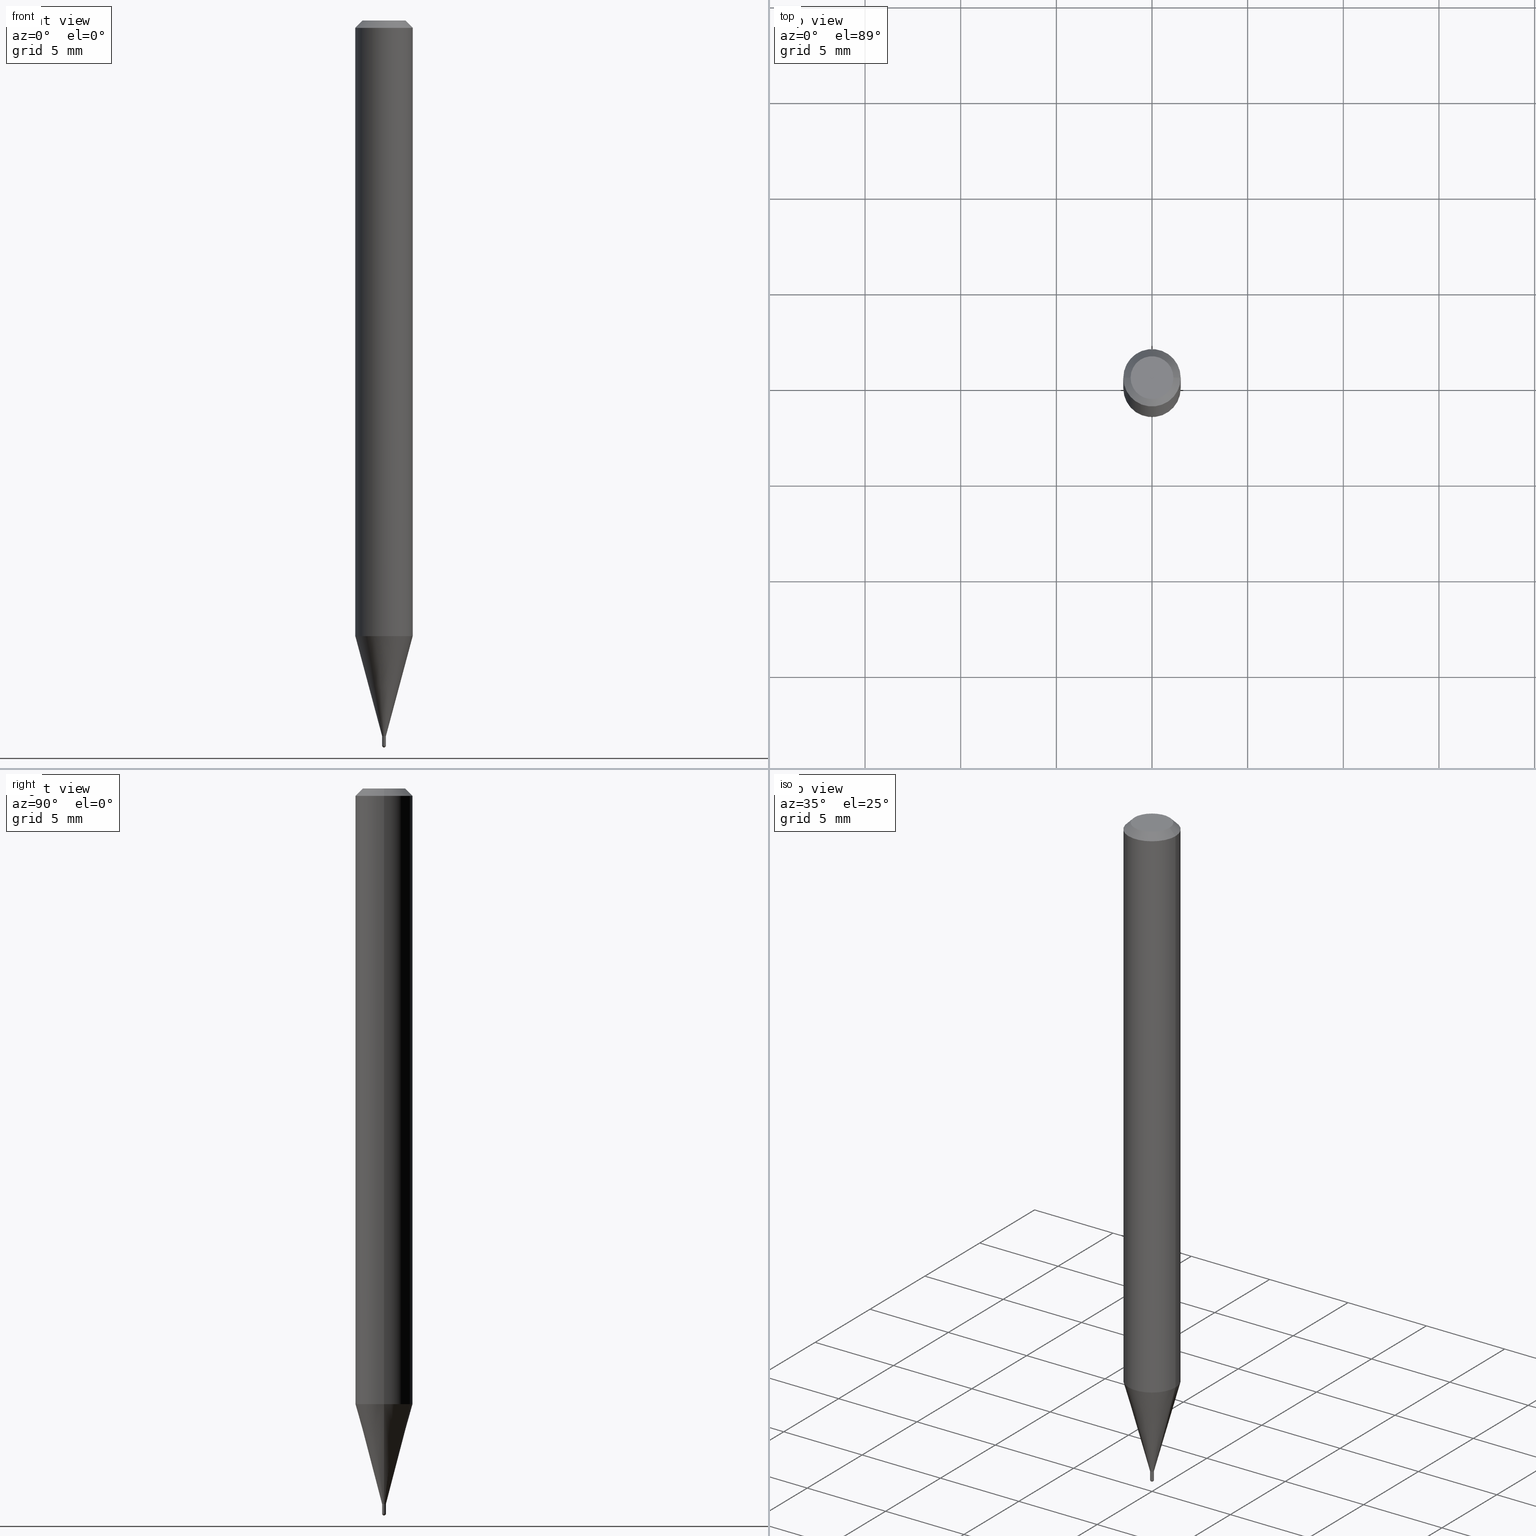
[diagram: canonical four-view strip — front | top / right | iso, engineering-drawing reading convention]
A machine part, canonical four-view strip (front | top / right | iso — engineering-drawing reading convention). The complete STEP part file that produces these views, byte-faithful:
ISO-10303-21;
HEADER;
FILE_DESCRIPTION (( 'STEP AP203' ),
    '1' );
FILE_NAME ('05007.STEP',
    '2024-03-08T20:41:01',
    ( '' ),
    ( '' ),
    'SwSTEP 2.0',
    'SolidWorks 2023',
    '' );
FILE_SCHEMA (( 'CONFIG_CONTROL_DESIGN' ));
ENDSEC;

DATA;
#1 = LINE ( 'NONE', #335, #199 ) ;
#2 = EDGE_CURVE ( 'NONE', #381, #50, #173, .T. ) ;
#3 = VECTOR ( 'NONE', #498, 39.37007874015748143 ) ;
#4 = MANIFOLD_SOLID_BREP ( 'Body-Move/Copy2[2]', #373 ) ;
#5 = LINE ( 'NONE', #486, #93 ) ;
#6 = DIRECTION ( 'NONE',  ( -2.445468806185136877E-29, 3.491481338843145188E-15, 1.000000000000000000 ) ) ;
#7 = EDGE_CURVE ( 'NONE', #50, #308, #119, .T. ) ;
#8 = DIRECTION ( 'NONE',  ( 1.000000000000000000, -7.105427357601001070E-15, 4.926315508542082329E-29 ) ) ;
#9 = VECTOR ( 'NONE', #35, 39.37007874015748143 ) ;
#10 = AXIS2_PLACEMENT_3D ( 'NONE', #37, #287, #397 ) ;
#11 = ORIENTED_EDGE ( 'NONE', *, *, #240, .T. ) ;
#12 = ORIENTED_EDGE ( 'NONE', *, *, #85, .T. ) ;
#13 = DIRECTION ( 'NONE',  ( 1.000000000000000000, -6.982962677686265922E-15, 4.888540261209747396E-29 ) ) ;
#14 =( LENGTH_UNIT ( ) NAMED_UNIT ( * ) SI_UNIT ( $, .METRE. ) );
#15 = CARTESIAN_POINT ( 'NONE',  ( 3.648668488464925560E-29, -5.210297615240462075E-15, -1.492149999999999865 ) ) ;
#16 = CC_DESIGN_PERSON_AND_ORGANIZATION_ASSIGNMENT ( #178, #221, ( #152 ) ) ;
#17 = DIRECTION ( 'NONE',  ( -0.7071067811865656694, 7.493145998870420424E-15, 0.7071067811865294761 ) ) ;
#18 = AXIS2_PLACEMENT_3D ( 'NONE', #15, #144, #106 ) ;
#19 = CC_DESIGN_SECURITY_CLASSIFICATION ( #121, ( #414 ) ) ;
#20 = DESIGN_CONTEXT ( 'detailed design', #429, 'design' ) ;
#21 = DIRECTION ( 'NONE',  ( -1.000000000000000000, 6.982962677686265922E-15, -4.876176775795935793E-29 ) ) ;
#22 = DIRECTION ( 'NONE',  ( 1.000000000000000000, -6.982962677686379518E-15, 0.000000000000000000 ) ) ;
#23 = DIRECTION ( 'NONE',  ( 1.000000000000000000, -6.982962677686266711E-15, 0.000000000000000000 ) ) ;
#24 = EDGE_CURVE ( 'NONE', #36, #280, #353, .T. ) ;
#25 = CARTESIAN_POINT ( 'NONE',  ( 3.599730082704520905E-29, -5.139460530777110821E-15, -1.471999999999999975 ) ) ;
#26 = ORIENTED_EDGE ( 'NONE', *, *, #410, .T. ) ;
#27 = AXIS2_PLACEMENT_3D ( 'NONE', #206, #370, #463 ) ;
#28 = AXIS2_PLACEMENT_3D ( 'NONE', #432, #342, #489 ) ;
#29 = FACE_OUTER_BOUND ( 'NONE', #269, .T. ) ;
#30 = APPROVAL ( #235, 'UNSPECIFIED' ) ;
#31 = EDGE_LOOP ( 'NONE', ( #150, #431 ) ) ;
#32 = ORIENTED_EDGE ( 'NONE', *, *, #85, .F. ) ;
#33 = UNCERTAINTY_MEASURE_WITH_UNIT (LENGTH_MEASURE( 1.000000000000000082E-05 ), #58, 'distance_accuracy_value', 'NONE');
#34 = CLOSED_SHELL ( 'NONE', ( #71, #83, #382, #315, #328 ) ) ;
#35 = DIRECTION ( 'NONE',  ( -0.7071067811865475727, 2.468850131082257455E-15, -0.7071067811865474617 ) ) ;
#36 = VERTEX_POINT ( 'NONE', #456 ) ;
#37 = CARTESIAN_POINT ( 'NONE',  ( 1.968655146103496235E-45, -2.810717800960375713E-31, -8.050215734195126909E-17 ) ) ;
#38 = EDGE_CURVE ( 'NONE', #101, #105, #337, .T. ) ;
#39 =( GEOMETRIC_REPRESENTATION_CONTEXT ( 3 ) GLOBAL_UNCERTAINTY_ASSIGNED_CONTEXT ( ( #33 ) ) GLOBAL_UNIT_ASSIGNED_CONTEXT ( ( #58, #326, #406 ) ) REPRESENTATION_CONTEXT ( 'NONE', 'WORKASPACE' ) );
#40 = DIRECTION ( 'NONE',  ( -2.445468806185136597E-29, 3.491481338843145583E-15, 1.000000000000000000 ) ) ;
#41 = EDGE_CURVE ( 'NONE', #36, #270, #281, .T. ) ;
#42 = ORIENTED_EDGE ( 'NONE', *, *, #402, .F. ) ;
#43 = COORDINATED_UNIVERSAL_TIME_OFFSET ( 5, 0, .BEHIND. ) ;
#44 = CARTESIAN_POINT ( 'NONE',  ( 3.600952817107613145E-29, -5.141206271446531536E-15, -1.472499999999999920 ) ) ;
#45 = ORIENTED_EDGE ( 'NONE', *, *, #94, .T. ) ;
#46 = CONICAL_SURFACE ( 'NONE', #238, 0.05904999999999999832, 0.7853981633974483900 ) ;
#47 = CONICAL_SURFACE ( 'NONE', #186, 0.003450000000000000809, 0.7853981633974739252 ) ;
#48 = CALENDAR_DATE ( 2024, 8, 3 ) ;
#49 = APPROVAL_PERSON_ORGANIZATION ( #438, #30, #254 ) ;
#50 = VERTEX_POINT ( 'NONE', #126 ) ;
#51 = ORIENTED_EDGE ( 'NONE', *, *, #38, .F. ) ;
#52 = CARTESIAN_POINT ( 'NONE',  ( 0.003450000000000000809, -5.165297492684549074E-15, -1.472499999999999920 ) ) ;
#53 = CARTESIAN_POINT ( 'NONE',  ( 3.075995059520799729E-16, 0.04404999999999999888, -1.940508316470162065E-16 ) ) ;
#54 = PLANE ( 'NONE',  #211 ) ;
#55 = DIRECTION ( 'NONE',  ( -2.445468806185136597E-29, 3.491481338843145583E-15, 1.000000000000000000 ) ) ;
#56 = FACE_OUTER_BOUND ( 'NONE', #325, .T. ) ;
#57 = ORIENTED_EDGE ( 'NONE', *, *, #24, .F. ) ;
#58 =( CONVERSION_BASED_UNIT ( 'INCH', #273 ) LENGTH_UNIT ( ) NAMED_UNIT ( #265 ) );
#59 = LINE ( 'NONE', #230, #444 ) ;
#60 = CARTESIAN_POINT ( 'NONE',  ( -0.003950000000000000386, -5.147443637538141834E-15, -1.472499999999999920 ) ) ;
#61 = ORIENTED_EDGE ( 'NONE', *, *, #2, .F. ) ;
#62 = AXIS2_PLACEMENT_3D ( 'NONE', #478, #82, #474 ) ;
#63 = CARTESIAN_POINT ( 'NONE',  ( 3.098076394908902159E-29, -4.423232016608262091E-15, -1.266864000502960996 ) ) ;
#64 = CYLINDRICAL_SURFACE ( 'NONE', #491, 0.003949999999999924925 ) ;
#65 = ORIENTED_EDGE ( 'NONE', *, *, #257, .F. ) ;
#66 = ADVANCED_FACE ( 'NONE', ( #351 ), #224, .T. ) ;
#67 = DIRECTION ( 'NONE',  ( 2.445468806185136597E-29, -3.491481338843145583E-15, -1.000000000000000000 ) ) ;
#68 = EDGE_LOOP ( 'NONE', ( #450, #192, #219, #436 ) ) ;
#69 = CARTESIAN_POINT ( 'NONE',  ( 3.098076394908902159E-29, -4.423232016608262091E-15, -1.266864000502960996 ) ) ;
#70 = ORIENTED_EDGE ( 'NONE', *, *, #258, .F. ) ;
#71 = ADVANCED_FACE ( 'NONE', ( #338 ), #425, .T. ) ;
#72 = CIRCLE ( 'NONE', #159, 0.003949999999999924925 ) ;
#73 = LOCAL_TIME ( 15, 41, 1.000000000000000000, #272 ) ;
#74 = ORIENTED_EDGE ( 'NONE', *, *, #7, .T. ) ;
#75 = ADVANCED_FACE ( 'NONE', ( #271 ), #291, .T. ) ;
#76 = CARTESIAN_POINT ( 'NONE',  ( 3.600952817107613145E-29, -5.141206271446531536E-15, -1.472499999999999920 ) ) ;
#77 = PERSON_AND_ORGANIZATION_ROLE ( 'creator' ) ;
#78 = EDGE_CURVE ( 'NONE', #132, #270, #443, .T. ) ;
#79 = FACE_OUTER_BOUND ( 'NONE', #454, .T. ) ;
#80 = EDGE_CURVE ( 'NONE', #89, #461, #113, .T. ) ;
#81 = CC_DESIGN_PERSON_AND_ORGANIZATION_ASSIGNMENT ( #398, #475, ( #276 ) ) ;
#82 = DIRECTION ( 'NONE',  ( -2.445468806185136597E-29, 3.491481338843145583E-15, 1.000000000000000000 ) ) ;
#83 = ADVANCED_FACE ( 'NONE', ( #249 ), #448, .T. ) ;
#84 = DIRECTION ( 'NONE',  ( -2.445468806185136597E-29, 3.491481338843145583E-15, 1.000000000000000000 ) ) ;
#85 = EDGE_CURVE ( 'NONE', #154, #36, #171, .T. ) ;
#86 = ORGANIZATION ( 'UNSPECIFIED', 'UNSPECIFIED', '' ) ;
#87 = EDGE_CURVE ( 'NONE', #302, #209, #195, .T. ) ;
#88 = DIRECTION ( 'NONE',  ( -2.445468806185136597E-29, 3.491481338843145583E-15, 1.000000000000000000 ) ) ;
#89 = VERTEX_POINT ( 'NONE', #457 ) ;
#90 = CARTESIAN_POINT ( 'NONE',  ( 0.000000000000000000, 0.000000000000000000, 0.000000000000000000 ) ) ;
#91 = DIRECTION ( 'NONE',  ( 1.000000000000000000, -6.982962677686265922E-15, 4.883557194083111780E-29 ) ) ;
#92 = DIRECTION ( 'NONE',  ( 1.000000000000000000, -6.982962677686246200E-15, 0.000000000000000000 ) ) ;
#93 = VECTOR ( 'NONE', #484, 39.37007874015748143 ) ;
#94 = EDGE_CURVE ( 'NONE', #209, #302, #127, .T. ) ;
#95 = CARTESIAN_POINT ( 'NONE',  ( 2.806643806256062979E-17, 0.003949999999994816165, -1.492149999999999865 ) ) ;
#96 = CARTESIAN_POINT ( 'NONE',  ( -0.003450000000000000809, -5.114043319888697212E-15, -1.472499999999999920 ) ) ;
#97 = DIRECTION ( 'NONE',  ( -2.445468806185136597E-29, 3.491481338843145583E-15, 1.000000000000000000 ) ) ;
#98 = DIRECTION ( 'NONE',  ( -2.445468806185136597E-29, 3.491481338843145583E-15, 1.000000000000000000 ) ) ;
#99 = DIRECTION ( 'NONE',  ( -2.445468806185136597E-29, 3.491481338843145583E-15, 1.000000000000000000 ) ) ;
#100 = CARTESIAN_POINT ( 'NONE',  ( 0.000000000000000000, 0.000000000000000000, 0.000000000000000000 ) ) ;
#101 = VERTEX_POINT ( 'NONE', #480 ) ;
#102 = ORIENTED_EDGE ( 'NONE', *, *, #153, .T. ) ;
#103 = CIRCLE ( 'NONE', #155, 0.05904999999999999832 ) ;
#104 = VERTEX_POINT ( 'NONE', #234 ) ;
#105 = VERTEX_POINT ( 'NONE', #401 ) ;
#106 = DIRECTION ( 'NONE',  ( -6.982962677686265922E-15, -1.000000000000000000, 0.000000000000000000 ) ) ;
#107 = CARTESIAN_POINT ( 'NONE',  ( 0.000000000000000000, 0.000000000000000000, 0.000000000000000000 ) ) ;
#108 = ORIENTED_EDGE ( 'NONE', *, *, #317, .F. ) ;
#109 = DATE_TIME_ROLE ( 'creation_date' ) ;
#110 = EDGE_LOOP ( 'NONE', ( #264, #368, #74, #359 ) ) ;
#111 = CARTESIAN_POINT ( 'NONE',  ( 3.600952817107613145E-29, -5.141206271446531536E-15, -1.472499999999999920 ) ) ;
#112 = ORIENTED_EDGE ( 'NONE', *, *, #445, .T. ) ;
#113 = CIRCLE ( 'NONE', #447, 0.05904999999999999832 ) ;
#114 = CIRCLE ( 'NONE', #10, 0.04404999999999999888 ) ;
#115 = DATE_AND_TIME ( #504, #472 ) ;
#116 = CARTESIAN_POINT ( 'NONE',  ( 0.05904999999999999832, -4.647161662000215063E-16, -0.01500000000000008098 ) ) ;
#117 = LINE ( 'NONE', #288, #9 ) ;
#118 = SHAPE_DEFINITION_REPRESENTATION ( #473, #396 ) ;
#119 = CIRCLE ( 'NONE', #256, 0.003949999999999924925 ) ;
#120 = AXIS2_PLACEMENT_3D ( 'NONE', #90, #251, #408 ) ;
#121 = SECURITY_CLASSIFICATION ( '', '', #360 ) ;
#122 = FACE_OUTER_BOUND ( 'NONE', #502, .T. ) ;
#123 = FACE_OUTER_BOUND ( 'NONE', #467, .T. ) ;
#124 = CC_DESIGN_DATE_AND_TIME_ASSIGNMENT ( #505, #284, ( #121 ) ) ;
#125 = APPROVAL ( #162, 'UNSPECIFIED' ) ;
#126 = CARTESIAN_POINT ( 'NONE',  ( -0.003949999999999924925, -5.111394092714586011E-15, -1.471999999999999975 ) ) ;
#127 = CIRCLE ( 'NONE', #427, 0.003949999999999924925 ) ;
#128 = CARTESIAN_POINT ( 'NONE',  ( 3.648668488464925560E-29, -5.210297615240462075E-15, -1.492149999999999865 ) ) ;
#129 = ORIENTED_EDGE ( 'NONE', *, *, #194, .F. ) ;
#130 = ORIENTED_EDGE ( 'NONE', *, *, #87, .T. ) ;
#131 = VECTOR ( 'NONE', #17, 39.37007874015748143 ) ;
#132 = VERTEX_POINT ( 'NONE', #476 ) ;
#133 = CIRCLE ( 'NONE', #320, 0.003950000000000000386 ) ;
#134 = FACE_OUTER_BOUND ( 'NONE', #31, .T. ) ;
#135 = EDGE_LOOP ( 'NONE', ( #250, #378, #323, #168 ) ) ;
#136 = PRODUCT_RELATED_PRODUCT_CATEGORY ( 'detail', '', ( #152 ) ) ;
#137 = DIRECTION ( 'NONE',  ( -2.445468806185136597E-29, 3.491481338843145583E-15, 1.000000000000000000 ) ) ;
#138 = CC_DESIGN_DATE_AND_TIME_ASSIGNMENT ( #506, #109, ( #276 ) ) ;
#139 = EDGE_LOOP ( 'NONE', ( #51, #213, #426, #507 ) ) ;
#140 = CARTESIAN_POINT ( 'NONE',  ( 0.003949999999999924925, -5.167043233353970578E-15, -1.471999999999999975 ) ) ;
#141 = PERSON_AND_ORGANIZATION ( #169, #86 ) ;
#142 = ORIENTED_EDGE ( 'NONE', *, *, #482, .F. ) ;
#143 = ADVANCED_FACE ( 'NONE', ( #123 ), #46, .T. ) ;
#144 = DIRECTION ( 'NONE',  ( 1.000000000000000000, -6.982962677686265922E-15, 4.883557194083111780E-29 ) ) ;
#145 = COORDINATED_UNIVERSAL_TIME_OFFSET ( 5, 0, .BEHIND. ) ;
#146 = CARTESIAN_POINT ( 'NONE',  ( 1.968655146103496235E-45, -2.810717800960375713E-31, -8.050215734195126909E-17 ) ) ;
#147 = VECTOR ( 'NONE', #460, 39.37007874015748854 ) ;
#148 = ADVANCED_FACE ( 'NONE', ( #290 ), #319, .T. ) ;
#149 = ORIENTED_EDGE ( 'NONE', *, *, #409, .F. ) ;
#150 = ORIENTED_EDGE ( 'NONE', *, *, #189, .T. ) ;
#151 = CARTESIAN_POINT ( 'NONE',  ( -0.003949999999999924925, 2.806643806252342390E-17, -1.942979360650650834E-31 ) ) ;
#152 = PRODUCT ( '05007', '05007', '', ( #346 ) ) ;
#153 = EDGE_CURVE ( 'NONE', #105, #89, #117, .T. ) ;
#154 = VERTEX_POINT ( 'NONE', #441 ) ;
#155 = AXIS2_PLACEMENT_3D ( 'NONE', #69, #352, #187 ) ;
#156 = PERSON_AND_ORGANIZATION ( #169, #86 ) ;
#157 = EDGE_CURVE ( 'NONE', #452, #308, #407, .T. ) ;
#158 = DIRECTION ( 'NONE',  ( -2.445468806185136597E-29, 3.491481338843145583E-15, 1.000000000000000000 ) ) ;
#159 = AXIS2_PLACEMENT_3D ( 'NONE', #434, #453, #177 ) ;
#160 = CC_DESIGN_PERSON_AND_ORGANIZATION_ASSIGNMENT ( #156, #490, ( #121 ) ) ;
#161 = ADVANCED_FACE ( 'NONE', ( #363 ), #299, .T. ) ;
#162 = APPROVAL_STATUS ( 'not_yet_approved' ) ;
#163 = ORIENTED_EDGE ( 'NONE', *, *, #24, .T. ) ;
#164 = ORIENTED_EDGE ( 'NONE', *, *, #317, .T. ) ;
#165 = CARTESIAN_POINT ( 'NONE',  ( -0.003949999999999924925, -4.558398182262964662E-15, -1.472499999999999920 ) ) ;
#166 = CIRCLE ( 'NONE', #333, 0.003450000000000000809 ) ;
#167 = APPROVAL ( #471, 'UNSPECIFIED' ) ;
#168 = ORIENTED_EDGE ( 'NONE', *, *, #459, .F. ) ;
#169 = PERSON ( 'UNSPECIFIED', 'UNSPECIFIED', 'UNSPECIFIED', ('UNSPECIFIED'), ('UNSPECIFIED'), ('UNSPECIFIED') ) ;
#170 = CARTESIAN_POINT ( 'NONE',  ( 3.649006279149151611E-29, -5.209813879754798599E-15, -1.492149999999999865 ) ) ;
#171 = CIRCLE ( 'NONE', #403, 0.003950000000000000386 ) ;
#172 = DIRECTION ( 'NONE',  ( -2.445468806185136597E-29, 3.491481338843145583E-15, 1.000000000000000000 ) ) ;
#173 = LINE ( 'NONE', #388, #131 ) ;
#174 = AXIS2_PLACEMENT_3D ( 'NONE', #107, #324, #181 ) ;
#175 = DIRECTION ( 'NONE',  ( -6.982962677686265922E-15, -1.000000000000000000, 0.000000000000000000 ) ) ;
#176 = DIRECTION ( 'NONE',  ( 1.000000000000000000, -6.982962677686373207E-15, 0.000000000000000000 ) ) ;
#177 = DIRECTION ( 'NONE',  ( 1.000000000000000000, -6.982962677686379518E-15, 0.000000000000000000 ) ) ;
#178 = PERSON_AND_ORGANIZATION ( #169, #86 ) ;
#179 = ORIENTED_EDGE ( 'NONE', *, *, #248, .F. ) ;
#180 = SPHERICAL_SURFACE ( 'NONE', #18, 0.003950000000000052428 ) ;
#181 = DIRECTION ( 'NONE',  ( 1.000000000000000000, 0.000000000000000000, 0.000000000000000000 ) ) ;
#182 = CALENDAR_DATE ( 2024, 8, 3 ) ;
#183 = DIRECTION ( 'NONE',  ( 1.000000000000000000, -6.982962677686379518E-15, 0.000000000000000000 ) ) ;
#184 = DIRECTION ( 'NONE',  ( 1.000000000000000000, -6.982962677686267499E-15, 4.876176775795935793E-29 ) ) ;
#185 = VECTOR ( 'NONE', #347, 39.37007874015748143 ) ;
#186 = AXIS2_PLACEMENT_3D ( 'NONE', #198, #365, #481 ) ;
#187 = DIRECTION ( 'NONE',  ( 1.000000000000000000, -6.982962677686273021E-15, 0.000000000000000000 ) ) ;
#188 = DIRECTION ( 'NONE',  ( -1.000000000000000000, 6.982962677686266711E-15, 0.000000000000000000 ) ) ;
#189 = EDGE_CURVE ( 'NONE', #280, #227, #511, .T. ) ;
#190 = LINE ( 'NONE', #151, #344 ) ;
#191 = CALENDAR_DATE ( 2024, 8, 3 ) ;
#192 = ORIENTED_EDGE ( 'NONE', *, *, #402, .T. ) ;
#193 = DIRECTION ( 'NONE',  ( -2.445468806185136877E-29, 3.491481338843145188E-15, 1.000000000000000000 ) ) ;
#194 = EDGE_CURVE ( 'NONE', #101, #461, #1, .T. ) ;
#195 = CIRCLE ( 'NONE', #220, 0.003949999999999924925 ) ;
#196 = VECTOR ( 'NONE', #6, 39.37007874015748143 ) ;
#197 = CARTESIAN_POINT ( 'NONE',  ( 0.003450000000000000809, -5.165297492684549074E-15, -1.472499999999999920 ) ) ;
#198 = CARTESIAN_POINT ( 'NONE',  ( 3.600952817107613145E-29, -5.141206271446531536E-15, -1.472499999999999920 ) ) ;
#199 = VECTOR ( 'NONE', #331, 39.37007874015748143 ) ;
#200 = EDGE_CURVE ( 'NONE', #283, #89, #205, .T. ) ;
#201 = DIRECTION ( 'NONE',  ( 1.000000000000000000, -6.982962677686267499E-15, 4.876176775795935793E-29 ) ) ;
#202 = ADVANCED_FACE ( 'NONE', ( #122 ), #47, .T. ) ;
#203 = CARTESIAN_POINT ( 'NONE',  ( 3.600952817107613145E-29, -5.141206271446531536E-15, -1.472499999999999920 ) ) ;
#204 = ORIENTED_EDGE ( 'NONE', *, *, #41, .F. ) ;
#205 = LINE ( 'NONE', #479, #196 ) ;
#206 = CARTESIAN_POINT ( 'NONE',  ( 0.000000000000000000, 0.000000000000000000, 0.000000000000000000 ) ) ;
#207 = ORIENTED_EDGE ( 'NONE', *, *, #240, .F. ) ;
#208 = DIRECTION ( 'NONE',  ( -2.445468806185136597E-29, 3.491481338843145583E-15, 1.000000000000000000 ) ) ;
#209 = VERTEX_POINT ( 'NONE', #446 ) ;
#210 = AXIS2_PLACEMENT_3D ( 'NONE', #111, #98, #176 ) ;
#211 = AXIS2_PLACEMENT_3D ( 'NONE', #262, #253, #259 ) ;
#212 = ORIENTED_EDGE ( 'NONE', *, *, #229, .F. ) ;
#213 = ORIENTED_EDGE ( 'NONE', *, *, #194, .T. ) ;
#214 = DIRECTION ( 'NONE',  ( -1.000000000000000000, 6.982962677686265922E-15, -4.876176775795935793E-29 ) ) ;
#215 = ADVANCED_FACE ( 'NONE', ( #369 ), #241, .F. ) ;
#216 = FACE_OUTER_BOUND ( 'NONE', #469, .T. ) ;
#217 = CARTESIAN_POINT ( 'NONE',  ( 3.600952817107613145E-29, -5.141206271446531536E-15, -1.472499999999999920 ) ) ;
#218 = ORIENTED_EDGE ( 'NONE', *, *, #409, .T. ) ;
#219 = ORIENTED_EDGE ( 'NONE', *, *, #334, .T. ) ;
#220 = AXIS2_PLACEMENT_3D ( 'NONE', #495, #137, #309 ) ;
#221 = PERSON_AND_ORGANIZATION_ROLE ( 'design_owner' ) ;
#222 = ADVANCED_FACE ( 'NONE', ( #367 ), #64, .F. ) ;
#223 = APPROVAL_PERSON_ORGANIZATION ( #141, #125, #485 ) ;
#224 = CYLINDRICAL_SURFACE ( 'NONE', #392, 0.05904999999999999832 ) ;
#225 = FACE_OUTER_BOUND ( 'NONE', #135, .T. ) ;
#226 = VERTEX_POINT ( 'NONE', #263 ) ;
#227 = VERTEX_POINT ( 'NONE', #60 ) ;
#228 = ORIENTED_EDGE ( 'NONE', *, *, #94, .F. ) ;
#229 = EDGE_CURVE ( 'NONE', #132, #154, #295, .T. ) ;
#230 = CARTESIAN_POINT ( 'NONE',  ( -0.003950000000000000386, 2.806643806252396008E-17, -1.942979360650688056E-31 ) ) ;
#231 = APPROVAL_DATE_TIME ( #274, #125 ) ;
#232 = LOCAL_TIME ( 15, 41, 1.000000000000000000, #278 ) ;
#233 = CALENDAR_DATE ( 2024, 8, 3 ) ;
#234 = CARTESIAN_POINT ( 'NONE',  ( -0.003950000000000000386, -5.147443637538141834E-15, -1.492149999999999865 ) ) ;
#235 = APPROVAL_STATUS ( 'not_yet_approved' ) ;
#236 = PERSON_AND_ORGANIZATION ( #169, #86 ) ;
#237 = DIRECTION ( 'NONE',  ( 1.000000000000000000, -6.982962677686246200E-15, 0.000000000000000000 ) ) ;
#238 = AXIS2_PLACEMENT_3D ( 'NONE', #395, #329, #188 ) ;
#239 = VECTOR ( 'NONE', #477, 39.37007874015748143 ) ;
#240 = EDGE_CURVE ( 'NONE', #452, #381, #166, .T. ) ;
#241 = CYLINDRICAL_SURFACE ( 'NONE', #404, 0.003949999999999924925 ) ;
#242 = APPROVAL_DATE_TIME ( #372, #30 ) ;
#243 = AXIS2_PLACEMENT_3D ( 'NONE', #44, #293, #22 ) ;
#244 = CARTESIAN_POINT ( 'NONE',  ( 3.668203209277724356E-31, -5.237222008264746748E-17, -0.01500000000000008098 ) ) ;
#245 = AXIS2_PLACEMENT_3D ( 'NONE', #435, #455, #23 ) ;
#246 = AXIS2_PLACEMENT_3D ( 'NONE', #63, #268, #312 ) ;
#247 = LOCAL_TIME ( 15, 41, 1.000000000000000000, #145 ) ;
#248 = EDGE_CURVE ( 'NONE', #461, #89, #487, .T. ) ;
#249 = FACE_OUTER_BOUND ( 'NONE', #275, .T. ) ;
#250 = ORIENTED_EDGE ( 'NONE', *, *, #78, .F. ) ;
#251 = DIRECTION ( 'NONE',  ( -2.445468806185136597E-29, 3.491481338843145583E-15, 1.000000000000000000 ) ) ;
#252 = DIRECTION ( 'NONE',  ( 1.000000000000000000, -6.982962677686246200E-15, 0.000000000000000000 ) ) ;
#253 = DIRECTION ( 'NONE',  ( -2.438088387897960049E-29, 3.491481338843145188E-15, 1.000000000000000000 ) ) ;
#254 = APPROVAL_ROLE ( '' ) ;
#255 = DIRECTION ( 'NONE',  ( -0.2588190451025284000, 5.211531920934592063E-15, 0.9659258262890662028 ) ) ;
#256 = AXIS2_PLACEMENT_3D ( 'NONE', #25, #55, #183 ) ;
#257 = EDGE_CURVE ( 'NONE', #302, #50, #190, .T. ) ;
#258 = EDGE_CURVE ( 'NONE', #302, #283, #327, .T. ) ;
#259 = DIRECTION ( 'NONE',  ( 1.000000000000000000, -6.982962677686265922E-15, 4.876176775795935793E-29 ) ) ;
#260 = CARTESIAN_POINT ( 'NONE',  ( 3.668203209277724356E-31, -5.237222008264746748E-17, -0.01500000000000008098 ) ) ;
#261 = CARTESIAN_POINT ( 'NONE',  ( -0.05904999999999999832, -4.003656531141921809E-15, -1.266864000502960996 ) ) ;
#262 = CARTESIAN_POINT ( 'NONE',  ( 3.600952817107613145E-29, -5.141206271446531536E-15, -1.472499999999999920 ) ) ;
#263 = CARTESIAN_POINT ( 'NONE',  ( 0.05904999999999999832, -4.835575962725635433E-15, -1.266864000502960996 ) ) ;
#264 = ORIENTED_EDGE ( 'NONE', *, *, #87, .F. ) ;
#265 = DIMENSIONAL_EXPONENTS ( 1.000000000000000000, 0.000000000000000000, 0.000000000000000000, 0.000000000000000000, 0.000000000000000000, 0.000000000000000000, 0.000000000000000000 ) ;
#266 = CARTESIAN_POINT ( 'NONE',  ( 3.600952817107613145E-29, -5.141206271446531536E-15, -1.472499999999999920 ) ) ;
#267 = EDGE_LOOP ( 'NONE', ( #61, #379, #304, #496 ) ) ;
#268 = DIRECTION ( 'NONE',  ( -2.445468806185136597E-29, 3.491481338843145583E-15, 1.000000000000000000 ) ) ;
#269 = EDGE_LOOP ( 'NONE', ( #207, #310 ) ) ;
#270 = VERTEX_POINT ( 'NONE', #95 ) ;
#271 = FACE_OUTER_BOUND ( 'NONE', #421, .T. ) ;
#272 = COORDINATED_UNIVERSAL_TIME_OFFSET ( 5, 0, .BEHIND. ) ;
#273 = LENGTH_MEASURE_WITH_UNIT ( LENGTH_MEASURE( 0.02539999999999999897 ), #14 );
#274 = DATE_AND_TIME ( #182, #232 ) ;
#275 = EDGE_LOOP ( 'NONE', ( #212, #316, #204, #32 ) ) ;
#276 = PRODUCT_DEFINITION ( 'UNKNOWN', '', #414, #20 ) ;
#277 = LINE ( 'NONE', #420, #147 ) ;
#278 = COORDINATED_UNIVERSAL_TIME_OFFSET ( 5, 0, .BEHIND. ) ;
#279 = ORIENTED_EDGE ( 'NONE', *, *, #200, .T. ) ;
#280 = VERTEX_POINT ( 'NONE', #377 ) ;
#281 = CIRCLE ( 'NONE', #510, 0.003950000000000000386 ) ;
#282 = AXIS2_PLACEMENT_3D ( 'NONE', #170, #422, #355 ) ;
#283 = VERTEX_POINT ( 'NONE', #261 ) ;
#284 = DATE_TIME_ROLE ( 'classification_date' ) ;
#285 = APPROVAL_DATE_TIME ( #115, #167 ) ;
#286 = ORIENTED_EDGE ( 'NONE', *, *, #483, .F. ) ;
#287 = DIRECTION ( 'NONE',  ( -2.445468806185136597E-29, 3.491481338843145583E-15, 1.000000000000000000 ) ) ;
#288 = CARTESIAN_POINT ( 'NONE',  ( -0.05904999999999999832, 3.599717260347265590E-16, -0.01500000000000008098 ) ) ;
#289 = ORIENTED_EDGE ( 'NONE', *, *, #459, .T. ) ;
#290 = FACE_OUTER_BOUND ( 'NONE', #267, .T. ) ;
#291 = CONICAL_SURFACE ( 'NONE', #243, 0.003949999999999924925, 0.2617993877991573459 ) ;
#292 = VECTOR ( 'NONE', #255, 39.37007874015748854 ) ;
#293 = DIRECTION ( 'NONE',  ( -2.445468806185136597E-29, 3.491481338843145583E-15, 1.000000000000000000 ) ) ;
#294 = ADVANCED_FACE ( 'NONE', ( #56 ), #428, .T. ) ;
#295 = CIRCLE ( 'NONE', #28, 0.003950000000000052428 ) ;
#296 = LOCAL_TIME ( 15, 41, 1.000000000000000000, #43 ) ;
#297 = APPLICATION_CONTEXT ( 'configuration controlled 3d designs of mechanical parts and assemblies' ) ;
#298 = DIRECTION ( 'NONE',  ( 1.000000000000000000, -6.982962677686379518E-15, 0.000000000000000000 ) ) ;
#299 = CYLINDRICAL_SURFACE ( 'NONE', #120, 0.05904999999999999832 ) ;
#300 = EDGE_CURVE ( 'NONE', #209, #308, #5, .T. ) ;
#301 = CARTESIAN_POINT ( 'NONE',  ( 3.649006279149151611E-29, -5.209813879754798599E-15, -1.492149999999999865 ) ) ;
#302 = VERTEX_POINT ( 'NONE', #165 ) ;
#303 = CARTESIAN_POINT ( 'NONE',  ( 0.05904999999999999832, -4.123439461173740327E-16, 2.879382386107500220E-30 ) ) ;
#304 = ORIENTED_EDGE ( 'NONE', *, *, #157, .T. ) ;
#305 = EDGE_CURVE ( 'NONE', #226, #283, #374, .T. ) ;
#306 = DIRECTION ( 'NONE',  ( 2.438088387897960049E-29, -3.491481338843145188E-15, -1.000000000000000000 ) ) ;
#307 = CYLINDRICAL_SURFACE ( 'NONE', #366, 0.003950000000000000386 ) ;
#308 = VERTEX_POINT ( 'NONE', #140 ) ;
#309 = DIRECTION ( 'NONE',  ( 1.000000000000000000, -6.982962677686379518E-15, 0.000000000000000000 ) ) ;
#310 = ORIENTED_EDGE ( 'NONE', *, *, #442, .F. ) ;
#311 = PLANE ( 'NONE',  #356 ) ;
#312 = DIRECTION ( 'NONE',  ( 1.000000000000000000, -6.982962677686273021E-15, 0.000000000000000000 ) ) ;
#313 = ORIENTED_EDGE ( 'NONE', *, *, #80, .T. ) ;
#314 = CARTESIAN_POINT ( 'NONE',  ( 3.649006279149151611E-29, -5.209813879754798599E-15, -1.492149999999999865 ) ) ;
#315 = ADVANCED_FACE ( 'NONE', ( #225 ), #180, .T. ) ;
#316 = ORIENTED_EDGE ( 'NONE', *, *, #78, .T. ) ;
#317 = EDGE_CURVE ( 'NONE', #308, #50, #72, .T. ) ;
#318 = CARTESIAN_POINT ( 'NONE',  ( 0.000000000000000000, 0.000000000000000000, 0.000000000000000000 ) ) ;
#319 = CONICAL_SURFACE ( 'NONE', #210, 0.003450000000000000809, 0.7853981633974739252 ) ;
#320 = AXIS2_PLACEMENT_3D ( 'NONE', #76, #440, #237 ) ;
#321 = CC_DESIGN_APPROVAL ( #125, ( #276 ) ) ;
#322 = CARTESIAN_POINT ( 'NONE',  ( 3.600952817107613145E-29, -5.141206271446531536E-15, -1.472499999999999920 ) ) ;
#323 = ORIENTED_EDGE ( 'NONE', *, *, #410, .F. ) ;
#324 = DIRECTION ( 'NONE',  ( 0.000000000000000000, 0.000000000000000000, 1.000000000000000000 ) ) ;
#325 = EDGE_LOOP ( 'NONE', ( #45, #433, #488, #149 ) ) ;
#326 =( NAMED_UNIT ( * ) PLANE_ANGLE_UNIT ( ) SI_UNIT ( $, .RADIAN. ) );
#327 = LINE ( 'NONE', #508, #292 ) ;
#328 = ADVANCED_FACE ( 'NONE', ( #216 ), #307, .T. ) ;
#329 = DIRECTION ( 'NONE',  ( 2.445468806185136597E-29, -3.491481338843145583E-15, -1.000000000000000000 ) ) ;
#330 = CC_DESIGN_PERSON_AND_ORGANIZATION_ASSIGNMENT ( #439, #77, ( #414 ) ) ;
#331 = DIRECTION ( 'NONE',  ( 0.7071067811865475727, -7.319954787623256045E-15, -0.7071067811865474617 ) ) ;
#332 = DIRECTION ( 'NONE',  ( 1.000000000000000000, -6.982962677686379518E-15, 0.000000000000000000 ) ) ;
#333 = AXIS2_PLACEMENT_3D ( 'NONE', #217, #172, #493 ) ;
#334 = EDGE_CURVE ( 'NONE', #226, #461, #349, .T. ) ;
#335 = CARTESIAN_POINT ( 'NONE',  ( 0.05904999999999999832, -4.574846268510564405E-16, -0.01500000000000008098 ) ) ;
#336 = DIRECTION ( 'NONE',  ( -2.445468806185136597E-29, 3.491481338843145583E-15, 1.000000000000000000 ) ) ;
#337 = CIRCLE ( 'NONE', #361, 0.04404999999999999888 ) ;
#338 = FACE_OUTER_BOUND ( 'NONE', #350, .T. ) ;
#339 = AXIS2_PLACEMENT_3D ( 'NONE', #260, #67, #492 ) ;
#340 = APPROVAL_PERSON_ORGANIZATION ( #393, #167, #357 ) ;
#341 = EDGE_LOOP ( 'NONE', ( #497, #279, #179, #399 ) ) ;
#342 = DIRECTION ( 'NONE',  ( -1.000000000000000000, 6.982962677686265922E-15, -4.883557194083112340E-29 ) ) ;
#343 = AXIS2_PLACEMENT_3D ( 'NONE', #128, #8, #354 ) ;
#344 = VECTOR ( 'NONE', #193, 39.37007874015748143 ) ;
#345 = DIRECTION ( 'NONE',  ( 2.438088387897960049E-29, -3.491481338843145188E-15, -1.000000000000000000 ) ) ;
#346 = MECHANICAL_CONTEXT ( 'NONE', #297, 'mechanical' ) ;
#347 = DIRECTION ( 'NONE',  ( -2.445468806185136877E-29, 3.491481338843145188E-15, 1.000000000000000000 ) ) ;
#348 = DIRECTION ( 'NONE',  ( -2.445468806185136597E-29, 3.491481338843145583E-15, 1.000000000000000000 ) ) ;
#349 = LINE ( 'NONE', #303, #3 ) ;
#350 = EDGE_LOOP ( 'NONE', ( #289, #112, #499, #57, #386 ) ) ;
#351 = FACE_OUTER_BOUND ( 'NONE', #68, .T. ) ;
#352 = DIRECTION ( 'NONE',  ( -2.445468806185136597E-29, 3.491481338843145583E-15, 1.000000000000000000 ) ) ;
#353 = LINE ( 'NONE', #390, #185 ) ;
#354 = DIRECTION ( 'NONE',  ( 7.105427357601001859E-15, 1.000000000000000000, 0.000000000000000000 ) ) ;
#355 = DIRECTION ( 'NONE',  ( 1.000000000000000000, -6.982962677686246200E-15, 0.000000000000000000 ) ) ;
#356 = AXIS2_PLACEMENT_3D ( 'NONE', #53, #306, #214 ) ;
#357 = APPROVAL_ROLE ( '' ) ;
#358 = ORIENTED_EDGE ( 'NONE', *, *, #300, .T. ) ;
#359 = ORIENTED_EDGE ( 'NONE', *, *, #300, .F. ) ;
#360 = SECURITY_CLASSIFICATION_LEVEL ( 'unclassified' ) ;
#361 = AXIS2_PLACEMENT_3D ( 'NONE', #146, #376, #13 ) ;
#362 = AXIS2_PLACEMENT_3D ( 'NONE', #203, #84, #298 ) ;
#363 = FACE_OUTER_BOUND ( 'NONE', #341, .T. ) ;
#364 = CC_DESIGN_PERSON_AND_ORGANIZATION_ASSIGNMENT ( #236, #400, ( #414 ) ) ;
#365 = DIRECTION ( 'NONE',  ( -2.445468806185136597E-29, 3.491481338843145583E-15, 1.000000000000000000 ) ) ;
#366 = AXIS2_PLACEMENT_3D ( 'NONE', #318, #465, #184 ) ;
#367 = FACE_OUTER_BOUND ( 'NONE', #110, .T. ) ;
#368 = ORIENTED_EDGE ( 'NONE', *, *, #257, .T. ) ;
#369 = FACE_OUTER_BOUND ( 'NONE', #424, .T. ) ;
#370 = DIRECTION ( 'NONE',  ( -2.445468806185136597E-29, 3.491481338843145583E-15, 1.000000000000000000 ) ) ;
#371 = CARTESIAN_POINT ( 'NONE',  ( 3.600952817107613145E-29, -5.141206271446531536E-15, -1.472499999999999920 ) ) ;
#372 = DATE_AND_TIME ( #48, #296 ) ;
#373 = CLOSED_SHELL ( 'NONE', ( #222, #202, #405, #161, #294, #75, #66, #143, #512, #449, #148, #215 ) ) ;
#374 = CIRCLE ( 'NONE', #246, 0.05904999999999999832 ) ;
#375 = ORIENTED_EDGE ( 'NONE', *, *, #38, .T. ) ;
#376 = DIRECTION ( 'NONE',  ( -2.445468806185136597E-29, 3.491481338843145583E-15, 1.000000000000000000 ) ) ;
#377 = CARTESIAN_POINT ( 'NONE',  ( 0.003950000000000000386, -5.168788974023392081E-15, -1.472499999999999920 ) ) ;
#378 = ORIENTED_EDGE ( 'NONE', *, *, #229, .T. ) ;
#379 = ORIENTED_EDGE ( 'NONE', *, *, #442, .T. ) ;
#380 = CARTESIAN_POINT ( 'NONE',  ( 3.648668488464925560E-29, -5.210297615240462075E-15, -1.492149999999999865 ) ) ;
#381 = VERTEX_POINT ( 'NONE', #96 ) ;
#382 = ADVANCED_FACE ( 'NONE', ( #134 ), #503, .F. ) ;
#383 = CONICAL_SURFACE ( 'NONE', #339, 0.05904999999999999832, 0.7853981633974483900 ) ;
#384 = MANIFOLD_SOLID_BREP ( 'Body-Move/Copy2[1]', #34 ) ;
#385 = APPLICATION_PROTOCOL_DEFINITION ( 'international standard', 'config_control_design', 1994, #429 ) ;
#386 = ORIENTED_EDGE ( 'NONE', *, *, #41, .T. ) ;
#387 = CARTESIAN_POINT ( 'NONE',  ( 2.758270257689676197E-17, 0.003949999999994858665, -1.472499999999999920 ) ) ;
#388 = CARTESIAN_POINT ( 'NONE',  ( -0.003450000000000000809, -5.116692547062807624E-15, -1.472499999999999920 ) ) ;
#389 = DIRECTION ( 'NONE',  ( 1.000000000000000000, -6.982962677686266711E-15, 4.876176775795936353E-29 ) ) ;
#390 = CARTESIAN_POINT ( 'NONE',  ( 0.003950000000000000386, -2.758270257686075787E-17, 1.926089826439394878E-31 ) ) ;
#391 = DIRECTION ( 'NONE',  ( -2.445468806185136877E-29, 3.491481338843145188E-15, 1.000000000000000000 ) ) ;
#392 = AXIS2_PLACEMENT_3D ( 'NONE', #100, #208, #389 ) ;
#393 = PERSON_AND_ORGANIZATION ( #169, #86 ) ;
#394 = CC_DESIGN_APPROVAL ( #167, ( #414 ) ) ;
#395 = CARTESIAN_POINT ( 'NONE',  ( 3.668203209277724356E-31, -5.237222008264746748E-17, -0.01500000000000008098 ) ) ;
#396 = ADVANCED_BREP_SHAPE_REPRESENTATION ( '05007', ( #384, #4, #174 ), #39 ) ;
#397 = DIRECTION ( 'NONE',  ( 1.000000000000000000, -6.982962677686265922E-15, 4.888540261209747396E-29 ) ) ;
#398 = PERSON_AND_ORGANIZATION ( #169, #86 ) ;
#399 = ORIENTED_EDGE ( 'NONE', *, *, #334, .F. ) ;
#400 = PERSON_AND_ORGANIZATION_ROLE ( 'design_supplier' ) ;
#401 = CARTESIAN_POINT ( 'NONE',  ( -0.04404999999999999888, 3.337856159934031674E-16, -8.050215734195352474E-17 ) ) ;
#402 = EDGE_CURVE ( 'NONE', #283, #226, #103, .T. ) ;
#403 = AXIS2_PLACEMENT_3D ( 'NONE', #301, #348, #252 ) ;
#404 = AXIS2_PLACEMENT_3D ( 'NONE', #411, #40, #201 ) ;
#405 = ADVANCED_FACE ( 'NONE', ( #501 ), #383, .T. ) ;
#406 =( NAMED_UNIT ( * ) SI_UNIT ( $, .STERADIAN. ) SOLID_ANGLE_UNIT ( ) );
#407 = LINE ( 'NONE', #197, #239 ) ;
#408 = DIRECTION ( 'NONE',  ( 1.000000000000000000, -6.982962677686266711E-15, 4.876176775795936353E-29 ) ) ;
#409 = EDGE_CURVE ( 'NONE', #209, #226, #277, .T. ) ;
#410 = EDGE_CURVE ( 'NONE', #104, #154, #470, .T. ) ;
#411 = CARTESIAN_POINT ( 'NONE',  ( 0.000000000000000000, 0.000000000000000000, 0.000000000000000000 ) ) ;
#412 = AXIS2_PLACEMENT_3D ( 'NONE', #380, #91, #175 ) ;
#413 = CIRCLE ( 'NONE', #62, 0.003950000000000000386 ) ;
#414 = PRODUCT_DEFINITION_FORMATION_WITH_SPECIFIED_SOURCE ( 'ANY', '', #152, .NOT_KNOWN. ) ;
#415 = DIRECTION ( 'NONE',  ( 1.000000000000000000, -6.982962677686266711E-15, 0.000000000000000000 ) ) ;
#416 = DIRECTION ( 'NONE',  ( 1.000000000000000000, -6.982962677686246200E-15, 0.000000000000000000 ) ) ;
#417 = AXIS2_PLACEMENT_3D ( 'NONE', #371, #451, #92 ) ;
#418 = CC_DESIGN_APPROVAL ( #30, ( #121 ) ) ;
#419 = ORIENTED_EDGE ( 'NONE', *, *, #445, .F. ) ;
#420 = CARTESIAN_POINT ( 'NONE',  ( 0.003949999999999924925, -5.168788974023392081E-15, -1.472499999999999920 ) ) ;
#421 = EDGE_LOOP ( 'NONE', ( #70, #130, #218, #42 ) ) ;
#422 = DIRECTION ( 'NONE',  ( -2.445468806185136597E-29, 3.491481338843145583E-15, 1.000000000000000000 ) ) ;
#423 = DIRECTION ( 'NONE',  ( 1.000000000000000000, -6.982962677686267499E-15, 4.876176775795935793E-29 ) ) ;
#424 = EDGE_LOOP ( 'NONE', ( #65, #228, #358, #164 ) ) ;
#425 = CYLINDRICAL_SURFACE ( 'NONE', #27, 0.003950000000000000386 ) ;
#426 = ORIENTED_EDGE ( 'NONE', *, *, #248, .T. ) ;
#427 = AXIS2_PLACEMENT_3D ( 'NONE', #266, #158, #332 ) ;
#428 = CONICAL_SURFACE ( 'NONE', #362, 0.003949999999999924925, 0.2617993877991573459 ) ;
#429 = APPLICATION_CONTEXT ( 'configuration controlled 3d designs of mechanical parts and assemblies' ) ;
#430 = COORDINATED_UNIVERSAL_TIME_OFFSET ( 5, 0, .BEHIND. ) ;
#431 = ORIENTED_EDGE ( 'NONE', *, *, #483, .T. ) ;
#432 = CARTESIAN_POINT ( 'NONE',  ( 3.648668488464925560E-29, -5.210297615240462075E-15, -1.492149999999999865 ) ) ;
#433 = ORIENTED_EDGE ( 'NONE', *, *, #258, .T. ) ;
#434 = CARTESIAN_POINT ( 'NONE',  ( 3.599730082704520905E-29, -5.139460530777110821E-15, -1.471999999999999975 ) ) ;
#435 = CARTESIAN_POINT ( 'NONE',  ( 3.668203209277724356E-31, -5.237222008264746748E-17, -0.01500000000000008098 ) ) ;
#436 = ORIENTED_EDGE ( 'NONE', *, *, #80, .F. ) ;
#437 = AXIS2_PLACEMENT_3D ( 'NONE', #387, #345, #21 ) ;
#438 = PERSON_AND_ORGANIZATION ( #169, #86 ) ;
#439 = PERSON_AND_ORGANIZATION ( #169, #86 ) ;
#440 = DIRECTION ( 'NONE',  ( -2.445468806185136597E-29, 3.491481338843145583E-15, 1.000000000000000000 ) ) ;
#441 = CARTESIAN_POINT ( 'NONE',  ( -2.758270257682444562E-17, -0.003950000000005236649, -1.492149999999999865 ) ) ;
#442 = EDGE_CURVE ( 'NONE', #381, #452, #464, .T. ) ;
#443 = CIRCLE ( 'NONE', #343, 0.003950000000000052428 ) ;
#444 = VECTOR ( 'NONE', #391, 39.37007874015748143 ) ;
#445 = EDGE_CURVE ( 'NONE', #104, #227, #59, .T. ) ;
#446 = CARTESIAN_POINT ( 'NONE',  ( 0.003949999999999924925, -5.168788974023392081E-15, -1.472499999999999920 ) ) ;
#447 = AXIS2_PLACEMENT_3D ( 'NONE', #244, #88, #415 ) ;
#448 = SPHERICAL_SURFACE ( 'NONE', #412, 0.003950000000000052428 ) ;
#449 = ADVANCED_FACE ( 'NONE', ( #29 ), #54, .F. ) ;
#450 = ORIENTED_EDGE ( 'NONE', *, *, #200, .F. ) ;
#451 = DIRECTION ( 'NONE',  ( -2.445468806185136597E-29, 3.491481338843145583E-15, 1.000000000000000000 ) ) ;
#452 = VERTEX_POINT ( 'NONE', #52 ) ;
#453 = DIRECTION ( 'NONE',  ( -2.445468806185136597E-29, 3.491481338843145583E-15, 1.000000000000000000 ) ) ;
#454 = EDGE_LOOP ( 'NONE', ( #462, #375 ) ) ;
#455 = DIRECTION ( 'NONE',  ( -2.445468806185136597E-29, 3.491481338843145583E-15, 1.000000000000000000 ) ) ;
#456 = CARTESIAN_POINT ( 'NONE',  ( 0.003950000000000000386, -5.203092778177526401E-15, -1.492149999999999865 ) ) ;
#457 = CARTESIAN_POINT ( 'NONE',  ( -0.05904999999999999832, -1.818226632879115684E-15, -0.01500000000000008098 ) ) ;
#458 = ORIENTED_EDGE ( 'NONE', *, *, #157, .F. ) ;
#459 = EDGE_CURVE ( 'NONE', #270, #104, #413, .T. ) ;
#460 = DIRECTION ( 'NONE',  ( 0.2588190451025284000, 1.565188264969566156E-15, 0.9659258262890662028 ) ) ;
#461 = VERTEX_POINT ( 'NONE', #116 ) ;
#462 = ORIENTED_EDGE ( 'NONE', *, *, #482, .T. ) ;
#463 = DIRECTION ( 'NONE',  ( 1.000000000000000000, -6.982962677686267499E-15, 4.876176775795935793E-29 ) ) ;
#464 = CIRCLE ( 'NONE', #500, 0.003450000000000000809 ) ;
#465 = DIRECTION ( 'NONE',  ( -2.445468806185136597E-29, 3.491481338843145583E-15, 1.000000000000000000 ) ) ;
#466 = CARTESIAN_POINT ( 'NONE',  ( 0.000000000000000000, 0.000000000000000000, 0.000000000000000000 ) ) ;
#467 = EDGE_LOOP ( 'NONE', ( #129, #142, #102, #313 ) ) ;
#468 = DIRECTION ( 'NONE',  ( 1.000000000000000000, -6.982962677686373207E-15, 0.000000000000000000 ) ) ;
#469 = EDGE_LOOP ( 'NONE', ( #419, #26, #12, #163, #286 ) ) ;
#470 = CIRCLE ( 'NONE', #282, 0.003950000000000000386 ) ;
#471 = APPROVAL_STATUS ( 'not_yet_approved' ) ;
#472 = LOCAL_TIME ( 15, 41, 1.000000000000000000, #430 ) ;
#473 = PRODUCT_DEFINITION_SHAPE ( 'NONE', 'NONE',  #276 ) ;
#474 = DIRECTION ( 'NONE',  ( 1.000000000000000000, -6.982962677686246200E-15, 0.000000000000000000 ) ) ;
#475 = PERSON_AND_ORGANIZATION_ROLE ( 'creator' ) ;
#476 = CARTESIAN_POINT ( 'NONE',  ( 3.658159194907244152E-29, -5.224330834271724480E-15, -1.496099999999999985 ) ) ;
#477 = DIRECTION ( 'NONE',  ( 0.7071067811865656694, -2.468850131082446387E-15, 0.7071067811865294761 ) ) ;
#478 = CARTESIAN_POINT ( 'NONE',  ( 3.649006279149151611E-29, -5.209813879754798599E-15, -1.492149999999999865 ) ) ;
#479 = CARTESIAN_POINT ( 'NONE',  ( -0.05904999999999999832, 4.195754854663391478E-16, -2.904631170795521892E-30 ) ) ;
#480 = CARTESIAN_POINT ( 'NONE',  ( 0.04404999999999999888, -3.798447818264463530E-16, -8.050215734194887786E-17 ) ) ;
#481 = DIRECTION ( 'NONE',  ( 1.000000000000000000, -6.982962677686373207E-15, 0.000000000000000000 ) ) ;
#482 = EDGE_CURVE ( 'NONE', #105, #101, #114, .T. ) ;
#483 = EDGE_CURVE ( 'NONE', #227, #280, #133, .T. ) ;
#484 = DIRECTION ( 'NONE',  ( -2.445468806185136877E-29, 3.491481338843145188E-15, 1.000000000000000000 ) ) ;
#485 = APPROVAL_ROLE ( '' ) ;
#486 = CARTESIAN_POINT ( 'NONE',  ( 0.003949999999999924925, -2.758270257686023094E-17, 1.926089826439358094E-31 ) ) ;
#487 = CIRCLE ( 'NONE', #245, 0.05904999999999999832 ) ;
#488 = ORIENTED_EDGE ( 'NONE', *, *, #305, .F. ) ;
#489 = DIRECTION ( 'NONE',  ( -6.982962677686266711E-15, -1.000000000000000000, 0.000000000000000000 ) ) ;
#490 = PERSON_AND_ORGANIZATION_ROLE ( 'classification_officer' ) ;
#491 = AXIS2_PLACEMENT_3D ( 'NONE', #466, #97, #423 ) ;
#492 = DIRECTION ( 'NONE',  ( -1.000000000000000000, 6.982962677686266711E-15, 0.000000000000000000 ) ) ;
#493 = DIRECTION ( 'NONE',  ( 1.000000000000000000, -6.982962677686373207E-15, 0.000000000000000000 ) ) ;
#494 = ORIENTED_EDGE ( 'NONE', *, *, #2, .T. ) ;
#495 = CARTESIAN_POINT ( 'NONE',  ( 3.600952817107613145E-29, -5.141206271446531536E-15, -1.472499999999999920 ) ) ;
#496 = ORIENTED_EDGE ( 'NONE', *, *, #7, .F. ) ;
#497 = ORIENTED_EDGE ( 'NONE', *, *, #305, .T. ) ;
#498 = DIRECTION ( 'NONE',  ( -2.445468806185136877E-29, 3.491481338843145188E-15, 1.000000000000000000 ) ) ;
#499 = ORIENTED_EDGE ( 'NONE', *, *, #189, .F. ) ;
#500 = AXIS2_PLACEMENT_3D ( 'NONE', #322, #99, #468 ) ;
#501 = FACE_OUTER_BOUND ( 'NONE', #139, .T. ) ;
#502 = EDGE_LOOP ( 'NONE', ( #11, #494, #108, #458 ) ) ;
#503 = PLANE ( 'NONE',  #437 ) ;
#504 = CALENDAR_DATE ( 2024, 8, 3 ) ;
#505 = DATE_AND_TIME ( #233, #73 ) ;
#506 = DATE_AND_TIME ( #191, #247 ) ;
#507 = ORIENTED_EDGE ( 'NONE', *, *, #153, .F. ) ;
#508 = CARTESIAN_POINT ( 'NONE',  ( -0.003949999999999924925, -5.113139833384007514E-15, -1.472499999999999920 ) ) ;
#509 = APPLICATION_PROTOCOL_DEFINITION ( 'international standard', 'config_control_design', 1994, #297 ) ;
#510 = AXIS2_PLACEMENT_3D ( 'NONE', #314, #336, #416 ) ;
#511 = CIRCLE ( 'NONE', #417, 0.003950000000000000386 ) ;
#512 = ADVANCED_FACE ( 'NONE', ( #79 ), #311, .F. ) ;
ENDSEC;
END-ISO-10303-21;
